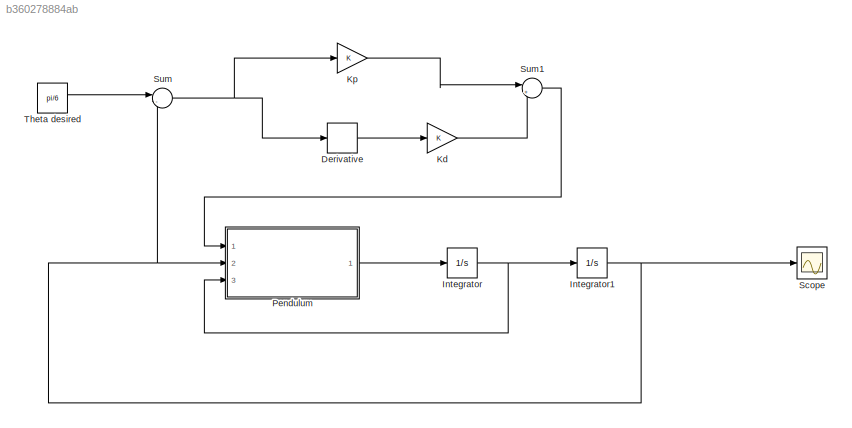
MODEL slx_b360278884ab
KIND model
CONFIG AbsTol = auto
CONFIG EnableMultiTasking = off
CONFIG FixedStep = auto
CONFIG MaxStep = auto
CONFIG MinStep = auto
CONFIG RelTol = 1e-3
CONFIG SampleTimeConstraint = Unconstrained
CONFIG Solver = VariableStepAuto
CONFIG SolverName = VariableStepAuto
CONFIG StartTime = 0.0
CONFIG StopTime = 10.0
BLOCK [Derivative] Derivative
BLOCK [Integrator] Integrator
  Ports = [1, 1]
BLOCK [Integrator] Integrator1
  InitialCondition = pi/2
  Ports = [1, 1]
BLOCK [Gain] Kd
  OutDataTypeStr = Inherit: Inherit via internal rule
  ParamDataTypeStr = Inherit: Inherit via internal rule
  SaturateOnIntegerOverflow = off
BLOCK [Gain] Kp
  OutDataTypeStr = Inherit: Inherit via internal rule
  ParamDataTypeStr = Inherit: Inherit via internal rule
  SaturateOnIntegerOverflow = off
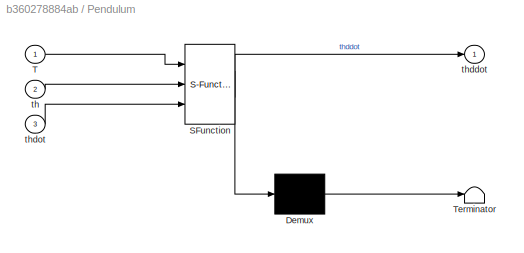
BLOCK [SubSystem] Pendulum
  ErrorFcn = Stateflow.Translate.translate
  PermitHierarchicalResolution = ExplicitOnly
  Ports = [3, 1]
  RequestExecContextInheritance = off
  SFBlockType = MATLAB Function
  TreatAsAtomicUnit = on
BLOCK [Demux] Pendulum/ Demux 
  Outputs = 1
  Ports = [1, 1]
BLOCK [S-Function] Pendulum/ SFunction 
  EnableBusSupport = on
  FunctionName = sf_sfun
  PortCounts = [3 2]
  Ports = [3, 2]
  SFcnIsStateOwnerBlock = off
  SFunctionDeploymentMode = off
  Tag = Stateflow S-Function 2
BLOCK [Terminator] Pendulum/ Terminator 
BLOCK [Inport] Pendulum/T
  IconDisplay = Port number
BLOCK [Inport] Pendulum/th
  IconDisplay = Port number
  Port = 2
BLOCK [Outport] Pendulum/thddot
  IconDisplay = Port number
BLOCK [Inport] Pendulum/thdot
  IconDisplay = Port number
  Port = 3
BLOCK [Scope] Scope
  Floating = off
  NumInputPorts = 1
  Ports = [1]
  ScopeSpecificationString = Simulink.scopes.TimeScopeBlockCfg('CurrentConfiguration', extmgr.ConfigurationSet(extmgr.Configuration('Core','General UI',true),extmgr.Configuration('Core','Source UI',true),extmgr.Configuration('Sources','WiredSimulink',true),extmgr.Configuration('Visuals','Time Domain',true,'SerializedDisplays',{struct('MinYLimReal','1.32166','MaxYLimReal','3.81304','YLabelReal','','MinYLimMag','1.32166','MaxYL...<+1408ch>
BLOCK [Sum] Sum
  IconShape = round
  InputSameDT = off
  Inputs = |-+
  OutDataTypeStr = Inherit: Inherit via internal rule
  Ports = [2, 1]
  SaturateOnIntegerOverflow = off
BLOCK [Sum] Sum1
  IconShape = round
  InputSameDT = off
  Inputs = |++
  OutDataTypeStr = Inherit: Inherit via internal rule
  Ports = [2, 1]
  SaturateOnIntegerOverflow = off
BLOCK [Constant] Theta desired
  Value = pi/6
LINE Derivative:1 -> Kd:1
NET Integrator1:1 -> Pendulum:2, Scope:1, Sum:2
NET Integrator:1 -> Integrator1:1, Pendulum:3
LINE Kd:1 -> Sum1:2
LINE Kp:1 -> Sum1:1
LINE Pendulum:1 -> Integrator:1
LINE Sum1:1 -> Pendulum:1
NET Sum:1 -> Derivative:1, Kp:1
LINE Theta desired:1 -> Sum:1
note: NET lines group one-source signal fan-out (src -> all destinations, sorted); 1:1 wires keep LINE
CHART Pendulum states=1 transitions=1
  STATE_LABEL 'eML_blk_kernel()'
  STATE_LABEL 'SCRIPT:\nfunction thddot = pendulum_calc(T,th,thdot)\n\nm=1;\ng=9.81;\nl=1;\n\nthddot = (-T+m*g*l*sin(th))/(m*l^2);\n'
